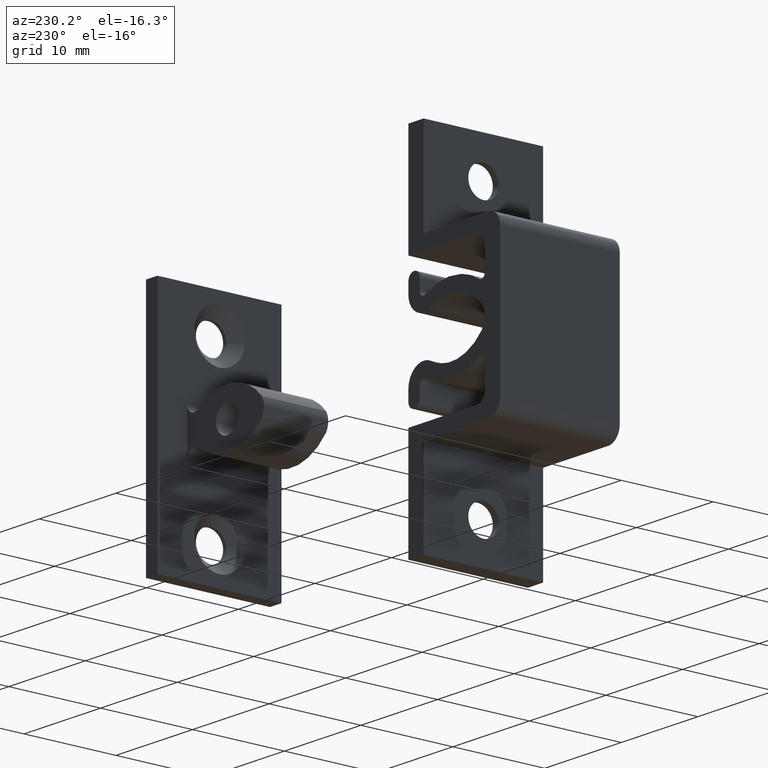
[diagram: clean part render]
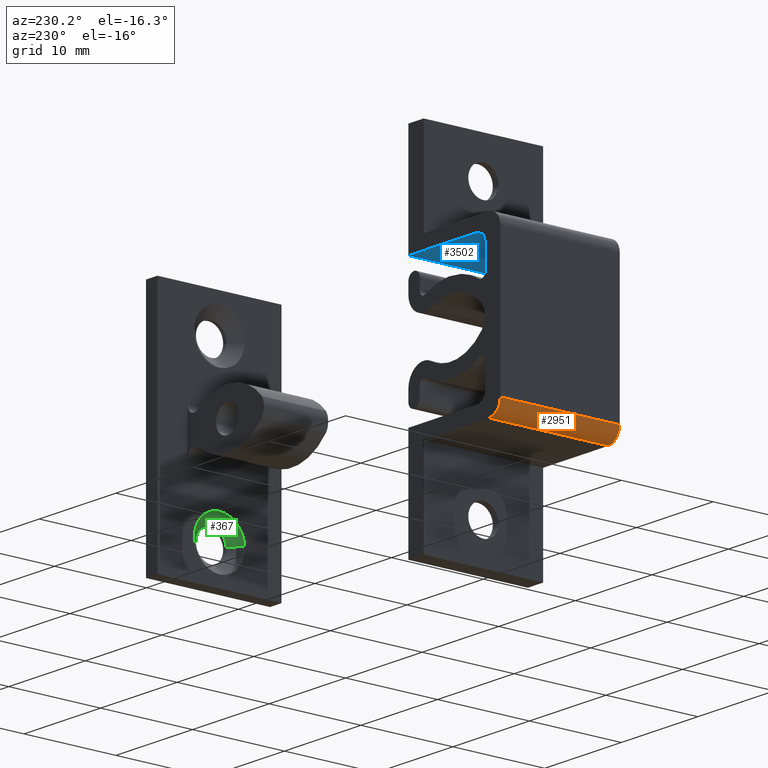
[diagram: same view with three faces highlighted in distinct colors, each labeled with its STEP entity id]
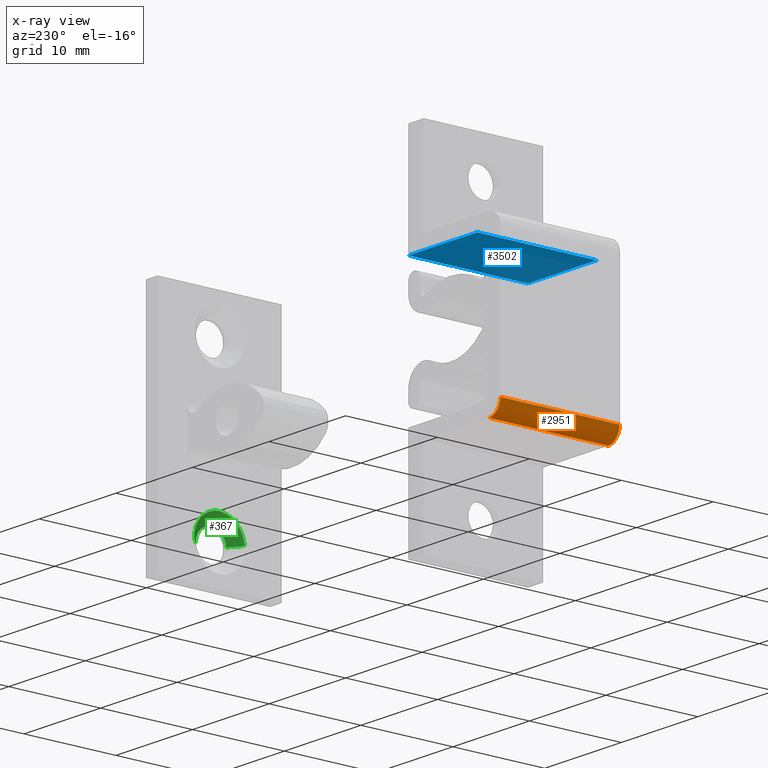
[diagram: x-ray of the same camera — body ghosted, the three highlighted faces saturated]
A machine part, auxiliary view with three faces highlighted in distinct colors.
The next image is the same camera in x-ray (body ghosted, the three faces saturated) — at least one of them is partly hidden behind the body in this view.
Their STEP definitions:

[orange] entity #2951 — the highlighted face is a freeform B-spline surface patch.
#2439=CARTESIAN_POINT('',(1.500000000000000,6.500000000000000,-9.0));
#2440=VERTEX_POINT('',#2439);
#2446=CARTESIAN_POINT('',(0.0,6.500000000000000,-7.500000000000000));
#2447=VERTEX_POINT('',#2446);
#2448=CARTESIAN_POINT('',(0.0,6.500000000000000,-7.500000000000000));
#2449=CARTESIAN_POINT('',(0.0,6.500000000000001,-9.000000000000002));
#2450=CARTESIAN_POINT('',(1.500000000000000,6.500000000000000,-9.0));
#2458=(BOUNDED_CURVE()B_SPLINE_CURVE(2,(#2448,#2449,#2450),.UNSPECIFIED.,.F.,.U.)CURVE()GEOMETRIC_REPRESENTATION_ITEM()QUASI_UNIFORM_CURVE()RATIONAL_B_SPLINE_CURVE((1.0,0.707106781186548,1.0))REPRESENTATION_ITEM(''));
#2459=EDGE_CURVE('',#2447,#2440,#2458,.T.);
#2513=CARTESIAN_POINT('',(0.0,-6.500000000000000,-7.500000000000000));
#2514=VERTEX_POINT('',#2513);
#2520=CARTESIAN_POINT('',(1.500000000000000,-6.500000000000000,-9.0));
#2521=VERTEX_POINT('',#2520);
#2522=CARTESIAN_POINT('',(0.0,-6.500000000000000,-7.500000000000000));
#2523=CARTESIAN_POINT('',(0.0,-6.500000000000001,-9.000000000000002));
#2524=CARTESIAN_POINT('',(1.500000000000000,-6.500000000000000,-9.0));
#2532=(BOUNDED_CURVE()B_SPLINE_CURVE(2,(#2522,#2523,#2524),.UNSPECIFIED.,.F.,.U.)CURVE()GEOMETRIC_REPRESENTATION_ITEM()QUASI_UNIFORM_CURVE()RATIONAL_B_SPLINE_CURVE((1.0,0.707106781186548,1.0))REPRESENTATION_ITEM(''));
#2533=EDGE_CURVE('',#2514,#2521,#2532,.T.);
#2917=CARTESIAN_POINT('',(0.0,-6.500000000000000,-7.500000000000000));
#2918=CARTESIAN_POINT('',(0.0,6.500000000000000,-7.500000000000000));
#2919=QUASI_UNIFORM_CURVE('',1,(#2917,#2918),.UNSPECIFIED.,.F.,.U.);
#2920=EDGE_CURVE('',#2514,#2447,#2919,.T.);
#2927=CARTESIAN_POINT('',(0.000514012536664,-6.825000000000001,-7.460734577538190));
#2928=CARTESIAN_POINT('',(0.000514012536664,6.833125000000001,-7.460734577538190));
#2929=CARTESIAN_POINT('',(-0.042738390249393,-6.825000000000001,-9.112477200832080));
#2930=CARTESIAN_POINT('',(-0.042738390249393,6.833125000000002,-9.112477200832080));
#2931=CARTESIAN_POINT('',(1.605480113438977,-6.825000000000001,-8.996286719071215));
#2932=CARTESIAN_POINT('',(1.605480113438977,6.833125000000001,-8.996286719071215));
#2940=(BOUNDED_SURFACE()B_SPLINE_SURFACE(1,2,((#2927,#2929,#2931),(#2928,#2930,#2932)),.UNSPECIFIED.,.F.,.F.,.U.)B_SPLINE_SURFACE_WITH_KNOTS((2,2),(3,3),(0.0,13.658125000000000),(0.0,2.656713516132548),.UNSPECIFIED.)GEOMETRIC_REPRESENTATION_ITEM()RATIONAL_B_SPLINE_SURFACE(((1.0,0.670944223154768,0.996392648609106),(1.0,0.670944223154768,0.996392648609106)))REPRESENTATION_ITEM('')SURFACE());
#2941=ORIENTED_EDGE('',*,*,#2459,.T.);
#2942=CARTESIAN_POINT('',(1.500000000000000,-6.500000000000000,-9.0));
#2943=CARTESIAN_POINT('',(1.500000000000000,6.500000000000000,-9.0));
#2944=QUASI_UNIFORM_CURVE('',1,(#2942,#2943),.UNSPECIFIED.,.F.,.U.);
#2945=EDGE_CURVE('',#2521,#2440,#2944,.T.);
#2946=ORIENTED_EDGE('',*,*,#2945,.F.);
#2947=ORIENTED_EDGE('',*,*,#2533,.F.);
#2948=ORIENTED_EDGE('',*,*,#2920,.T.);
#2949=EDGE_LOOP('',(#2941,#2946,#2947,#2948));
#2950=FACE_OUTER_BOUND('',#2949,.T.);
#2951=ADVANCED_FACE('',(#2950),#2940,.T.);

[blue] entity #3502 — the highlighted face is a freeform B-spline surface patch.
#2114=CARTESIAN_POINT('',(11.999900000000000,6.500000000000000,7.500000000000000));
#2115=VERTEX_POINT('',#2114);
#2121=CARTESIAN_POINT('',(3.0,6.500000000000000,7.500000000000000));
#2122=VERTEX_POINT('',#2121);
#2123=CARTESIAN_POINT('',(11.999900000000000,6.500000000000000,7.500000000000000));
#2124=CARTESIAN_POINT('',(3.0,6.500000000000000,7.500000000000000));
#2125=QUASI_UNIFORM_CURVE('',1,(#2123,#2124),.UNSPECIFIED.,.F.,.U.);
#2126=EDGE_CURVE('',#2115,#2122,#2125,.T.);
#2838=CARTESIAN_POINT('',(3.0,-6.500000000000000,7.500000000000000));
#2839=VERTEX_POINT('',#2838);
#2853=CARTESIAN_POINT('',(11.999900000000000,-6.500000000000000,7.500000000000000));
#2854=VERTEX_POINT('',#2853);
#2855=CARTESIAN_POINT('',(11.999900000000000,-6.500000000000000,7.500000000000000));
#2856=CARTESIAN_POINT('',(3.0,-6.500000000000000,7.500000000000000));
#2857=QUASI_UNIFORM_CURVE('',1,(#2855,#2856),.UNSPECIFIED.,.F.,.U.);
#2858=EDGE_CURVE('',#2854,#2839,#2857,.T.);
#3477=CARTESIAN_POINT('',(3.0,-6.500000000000000,7.500000000000000));
#3478=CARTESIAN_POINT('',(3.0,6.500000000000000,7.500000000000000));
#3479=QUASI_UNIFORM_CURVE('',1,(#3477,#3478),.UNSPECIFIED.,.F.,.U.);
#3480=EDGE_CURVE('',#2839,#2122,#3479,.T.);
#3487=CARTESIAN_POINT('',(12.449444903071830,-7.149349974803478,7.500000000000000));
#3488=CARTESIAN_POINT('',(2.550454775066670,-7.149349974803478,7.500000000000000));
#3489=CARTESIAN_POINT('',(12.449444903071830,7.149350323490650,7.500000000000000));
#3490=CARTESIAN_POINT('',(2.550454775066670,7.149350323490650,7.500000000000000));
#3491=B_SPLINE_SURFACE_WITH_KNOTS('',1,1,((#3487,#3489),(#3488,#3490)),.UNSPECIFIED.,.F.,.F.,.U.,(2,2),(2,2),(0.0,9.898990128005156),(0.0,14.298700298294129),.UNSPECIFIED.);
#3492=ORIENTED_EDGE('',*,*,#2126,.F.);
#3493=CARTESIAN_POINT('',(11.999900000000000,-6.500000000000000,7.500000000000000));
#3494=CARTESIAN_POINT('',(11.999900000000000,6.500000000000000,7.500000000000000));
#3495=QUASI_UNIFORM_CURVE('',1,(#3493,#3494),.UNSPECIFIED.,.F.,.U.);
#3496=EDGE_CURVE('',#2854,#2115,#3495,.T.);
#3497=ORIENTED_EDGE('',*,*,#3496,.F.);
#3498=ORIENTED_EDGE('',*,*,#2858,.T.);
#3499=ORIENTED_EDGE('',*,*,#3480,.T.);
#3500=EDGE_LOOP('',(#3492,#3497,#3498,#3499));
#3501=FACE_OUTER_BOUND('',#3500,.T.);
#3502=ADVANCED_FACE('',(#3501),#3491,.T.);

[green] entity #367 — the highlighted face is a freeform B-spline surface patch.
#87=CARTESIAN_POINT('',(45.574221401069508,-0.941886383611050,-7.645249085489108));
#88=VERTEX_POINT('',#87);
#94=CARTESIAN_POINT('',(45.574221401069501,0.0,-7.349999999999999));
#95=VERTEX_POINT('',#94);
#96=CARTESIAN_POINT('',(45.574221401069501,0.0,-7.349999999999999));
#97=CARTESIAN_POINT('',(45.574221401069501,-0.517218424148629,-7.349999999999998));
#98=CARTESIAN_POINT('',(45.574221401069508,-0.941886383611050,-7.645249085489108));
#106=(BOUNDED_CURVE()B_SPLINE_CURVE(2,(#96,#97,#98),.UNSPECIFIED.,.F.,.U.)B_SPLINE_CURVE_WITH_KNOTS((3,3),(0.500000000000000,0.598090608939203),.UNSPECIFIED.)CURVE()GEOMETRIC_REPRESENTATION_ITEM()RATIONAL_B_SPLINE_CURVE((1.0,0.885079703249701,0.860340221601088))REPRESENTATION_ITEM(''));
#107=EDGE_CURVE('',#95,#88,#106,.T.);
#109=CARTESIAN_POINT('',(45.574221401046003,1.644913600668895,-9.129457508132798));
#110=VERTEX_POINT('',#109);
#111=CARTESIAN_POINT('',(45.574221401046010,1.644913600668895,-9.129457508132798));
#112=CARTESIAN_POINT('',(45.574221401069494,1.650000000000000,-9.064828676743501));
#113=CARTESIAN_POINT('',(45.574221401069501,1.650000000000000,-9.0));
#114=CARTESIAN_POINT('',(45.574221401069501,1.649999999999999,-7.349999999999999));
#115=CARTESIAN_POINT('',(45.574221401069501,0.0,-7.349999999999999));
#123=(BOUNDED_CURVE()B_SPLINE_CURVE(2,(#111,#112,#113,#114,#115),.UNSPECIFIED.,.F.,.U.)B_SPLINE_CURVE_WITH_KNOTS((3,2,3),(0.236331300595247,0.250000000000000,0.500000000000000),.UNSPECIFIED.)CURVE()GEOMETRIC_REPRESENTATION_ITEM()RATIONAL_B_SPLINE_CURVE((0.969723356093515,0.983986122537394,1.0,0.707106781186548,1.0))REPRESENTATION_ITEM(''));
#124=EDGE_CURVE('',#110,#95,#123,.T.);
#141=CARTESIAN_POINT('',(45.574221401046003,-1.644913600664278,-8.870542491958128));
#142=VERTEX_POINT('',#141);
#228=CARTESIAN_POINT('',(45.574221401069508,-0.941886383611050,-7.645249085489108));
#229=CARTESIAN_POINT('',(45.574221401069501,-1.583593269611358,-8.091393813439609));
#230=CARTESIAN_POINT('',(45.574221401046010,-1.644913600664278,-8.870542491958128));
#238=(BOUNDED_CURVE()B_SPLINE_CURVE(2,(#228,#229,#230),.UNSPECIFIED.,.F.,.U.)B_SPLINE_CURVE_WITH_KNOTS((3,3),(0.598090608939204,0.736331300595246),.UNSPECIFIED.)CURVE()GEOMETRIC_REPRESENTATION_ITEM()RATIONAL_B_SPLINE_CURVE((0.860340221601087,0.825474467465176,0.969723356093512))REPRESENTATION_ITEM(''));
#239=EDGE_CURVE('',#88,#142,#238,.T.);
#264=CARTESIAN_POINT('',(44.474221401039728,2.741522667777879,-9.215762513480753));
#265=VERTEX_POINT('',#264);
#266=CARTESIAN_POINT('',(45.574221401046003,1.644913600668895,-9.129457508132798));
#267=CARTESIAN_POINT('',(44.474221401039728,2.741522667777879,-9.215762513480753));
#268=QUASI_UNIFORM_CURVE('',1,(#266,#267),.UNSPECIFIED.,.F.,.U.);
#269=EDGE_CURVE('',#110,#265,#268,.T.);
#286=CARTESIAN_POINT('',(44.474221401039728,-2.741522667777880,-8.784237486519245));
#287=VERTEX_POINT('',#286);
#303=CARTESIAN_POINT('',(45.574221401046003,-1.644913600664278,-8.870542491958128));
#304=CARTESIAN_POINT('',(44.474221401039728,-2.741522667777880,-8.784237486519245));
#305=QUASI_UNIFORM_CURVE('',1,(#303,#304),.UNSPECIFIED.,.F.,.U.);
#306=EDGE_CURVE('',#142,#287,#305,.T.);
#312=CARTESIAN_POINT('',(45.601721401069511,-1.617498373981941,-8.872700117181575));
#313=CARTESIAN_POINT('',(45.601721401069526,-1.490198491163516,-7.255201743199633));
#314=CARTESIAN_POINT('',(45.601721401069511,0.127299882818425,-7.382501626018059));
#315=CARTESIAN_POINT('',(45.601721401069526,1.744798256800366,-7.509801508836485));
#316=CARTESIAN_POINT('',(45.601721401069511,1.617498373981941,-9.127299882818425));
#317=CARTESIAN_POINT('',(44.446033901069441,-2.769623275110710,-8.782025920987596));
#318=CARTESIAN_POINT('',(44.446033901069434,-2.551649196098306,-6.012402645876887));
#319=CARTESIAN_POINT('',(44.446033901069441,0.217974079012404,-6.230376724889290));
#320=CARTESIAN_POINT('',(44.446033901069434,2.987597354123115,-6.448350803901693));
#321=CARTESIAN_POINT('',(44.446033901069441,2.769623275110710,-9.217974079012404));
#329=(BOUNDED_SURFACE()B_SPLINE_SURFACE(2,1,((#312,#317),(#313,#318),(#314,#319),(#315,#320),(#316,#321)),.UNSPECIFIED.,.F.,.F.,.U.)B_SPLINE_SURFACE_WITH_KNOTS((3,2,3),(2,2),(0.0,4.603051765261623,9.206103530523246),(0.0,1.0),.UNSPECIFIED.)GEOMETRIC_REPRESENTATION_ITEM()RATIONAL_B_SPLINE_SURFACE(((1.0,1.0),(0.707106781186548,0.707106781186548),(1.0,1.0),(0.707106781186548,0.707106781186548),(1.0,1.0)))REPRESENTATION_ITEM('')SURFACE());
#330=ORIENTED_EDGE('',*,*,#124,.T.);
#331=ORIENTED_EDGE('',*,*,#107,.T.);
#332=ORIENTED_EDGE('',*,*,#239,.T.);
#333=ORIENTED_EDGE('',*,*,#306,.T.);
#334=CARTESIAN_POINT('',(44.474221401069450,0.0,-6.249999999999999));
#335=VERTEX_POINT('',#334);
#336=CARTESIAN_POINT('',(44.474221401069450,0.0,-6.249999999999999));
#337=CARTESIAN_POINT('',(44.474221401069464,-2.542073851638078,-6.249999999999997));
#338=CARTESIAN_POINT('',(44.474221401039735,-2.741522667777880,-8.784237486519245));
#346=(BOUNDED_CURVE()B_SPLINE_CURVE(2,(#336,#337,#338),.UNSPECIFIED.,.F.,.U.)B_SPLINE_CURVE_WITH_KNOTS((3,3),(0.500000000000000,0.736331300604398),.UNSPECIFIED.)CURVE()GEOMETRIC_REPRESENTATION_ITEM()RATIONAL_B_SPLINE_CURVE((1.0,0.723120658638433,0.969723356112611))REPRESENTATION_ITEM(''));
#347=EDGE_CURVE('',#335,#287,#346,.T.);
#348=ORIENTED_EDGE('',*,*,#347,.F.);
#349=CARTESIAN_POINT('',(44.474221401039728,2.741522667777879,-9.215762513480753));
#350=CARTESIAN_POINT('',(44.474221401069450,2.749999999999999,-9.108047794498992));
#351=CARTESIAN_POINT('',(44.474221401069450,2.750000000000000,-9.0));
#352=CARTESIAN_POINT('',(44.474221401069457,2.750000000000000,-6.249999999999998));
#353=CARTESIAN_POINT('',(44.474221401069450,0.0,-6.249999999999999));
#361=(BOUNDED_CURVE()B_SPLINE_CURVE(2,(#349,#350,#351,#352,#353),.UNSPECIFIED.,.F.,.U.)B_SPLINE_CURVE_WITH_KNOTS((3,2,3),(0.236331300604398,0.250000000000000,0.500000000000000),.UNSPECIFIED.)CURVE()GEOMETRIC_REPRESENTATION_ITEM()RATIONAL_B_SPLINE_CURVE((0.969723356112612,0.983986122548114,1.0,0.707106781186548,1.0))REPRESENTATION_ITEM(''));
#362=EDGE_CURVE('',#265,#335,#361,.T.);
#363=ORIENTED_EDGE('',*,*,#362,.F.);
#364=ORIENTED_EDGE('',*,*,#269,.F.);
#365=EDGE_LOOP('',(#330,#331,#332,#333,#348,#363,#364));
#366=FACE_OUTER_BOUND('',#365,.T.);
#367=ADVANCED_FACE('',(#366),#329,.F.);